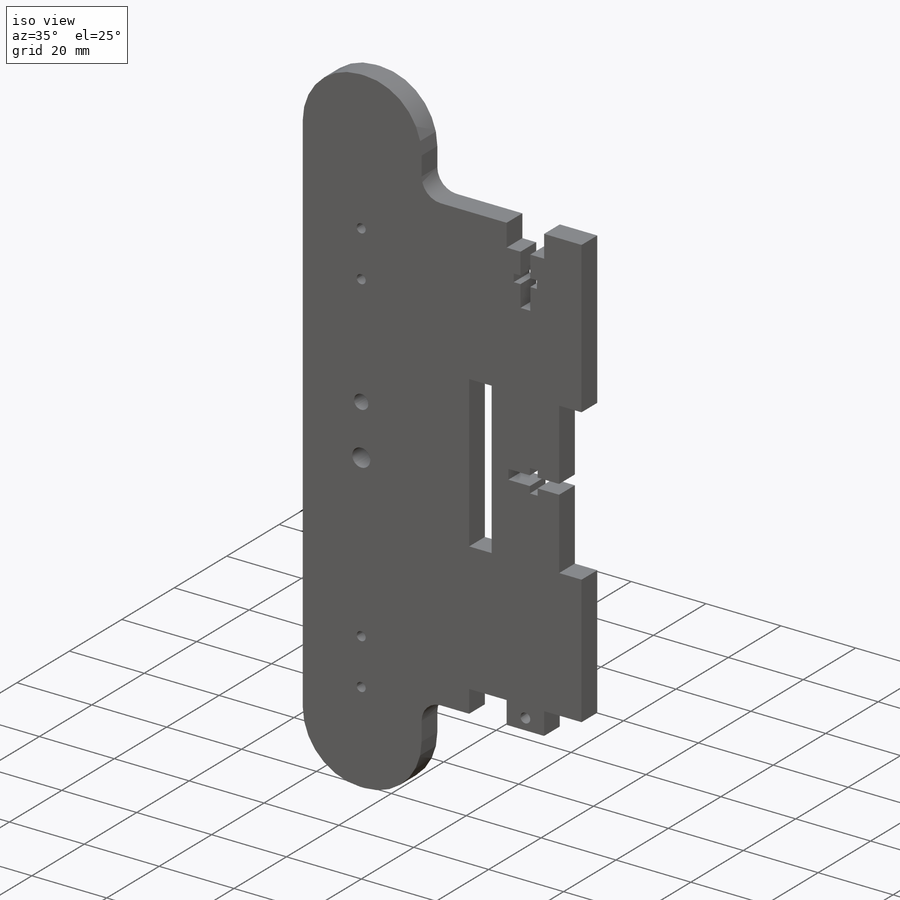
[diagram: iso view]
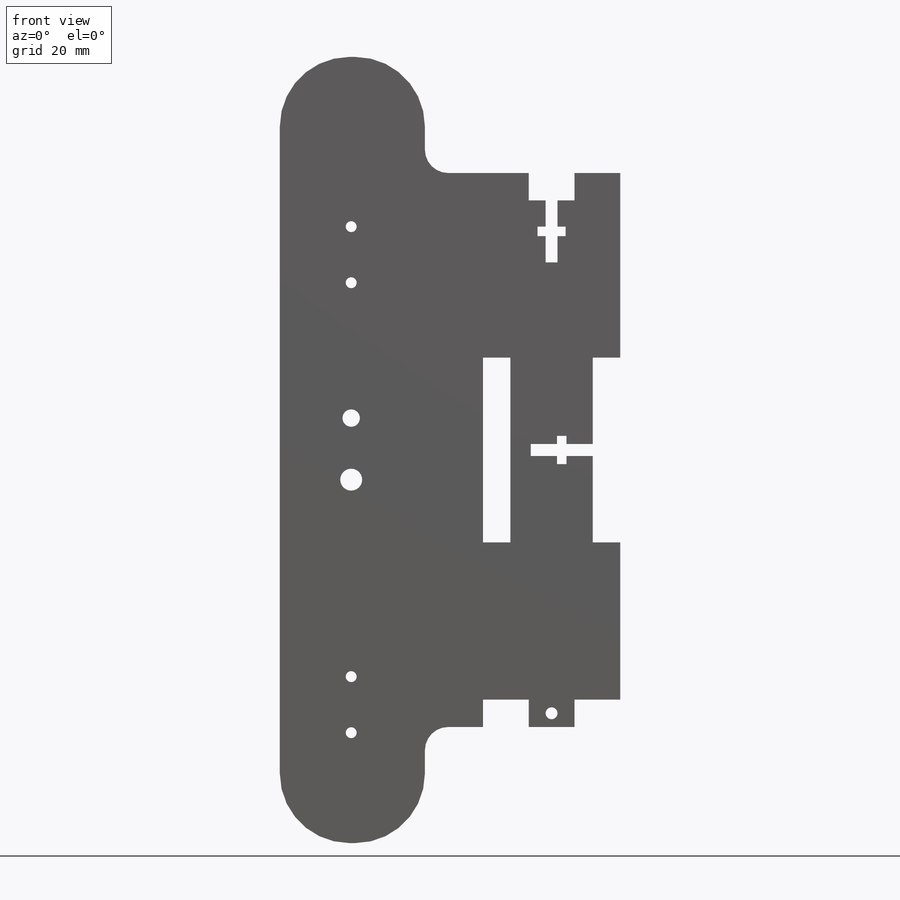
[diagram: front view]
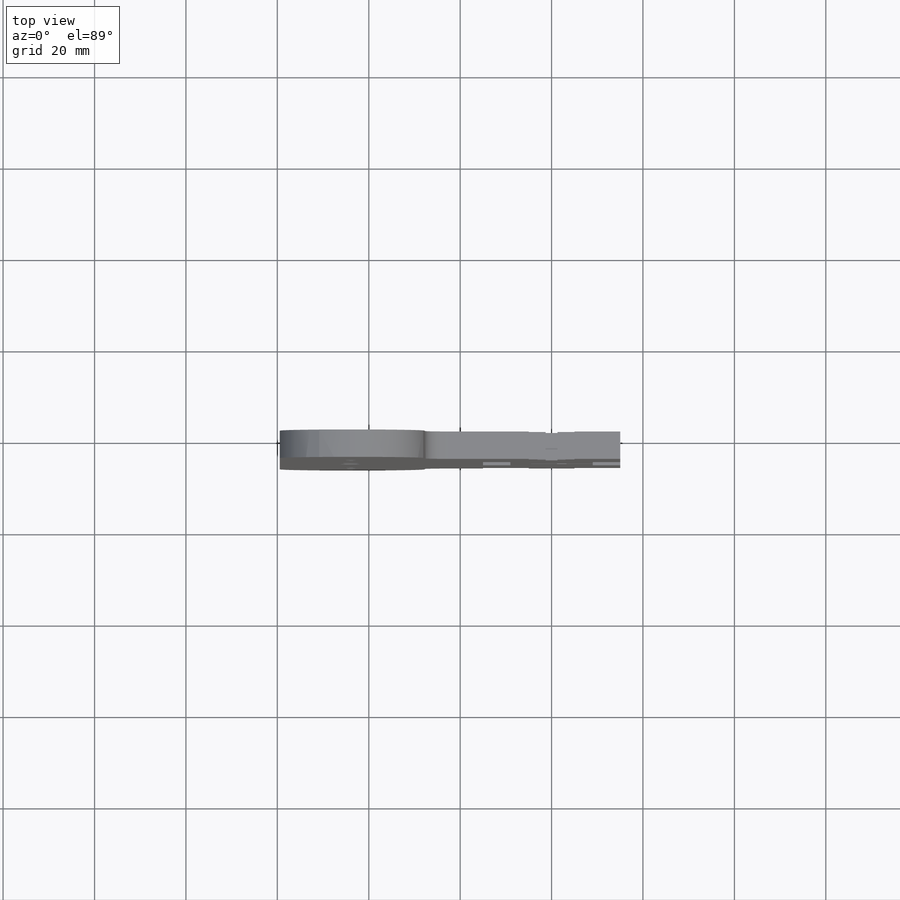
[diagram: top view]
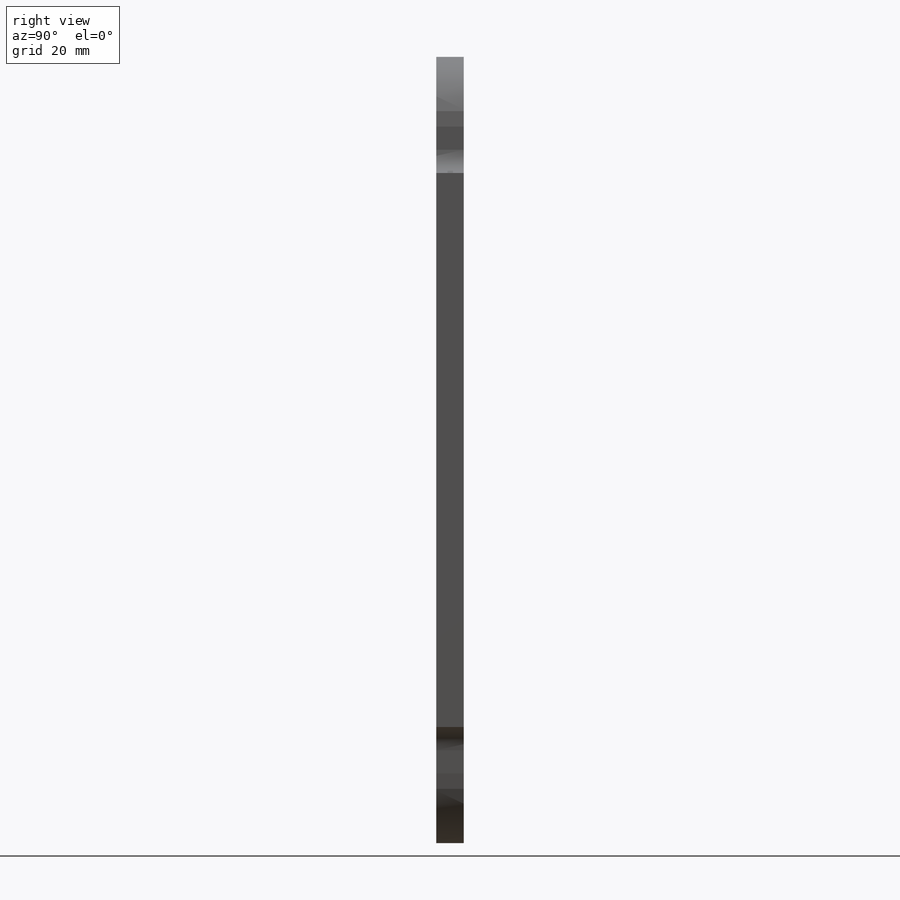
[diagram: right view]
SOLIDWORKS PART (.sldprt)
format: sldprt  version: not decoded by parser v0  size: 508,416 bytes
history: native  units: mm
features: sketch x8, extrude x4, cut_extrude x4, fillet x2, material x1 (+11 scaffold rows collapsed)
feature tree (30):
  scaffold x11  (default folders/planes/origin — collapsed)
  material  "Mahogany"
  sketch  "Sketch1"  dims[D1=29.6164mm D2=120.8024mm]
  extrude  "Boss-Extrude1"  Depth=5.7912mm
  sketch  "Sketch3"  dims[c1.D1=5.7912mm c1.D2=~33.443333mm c1.D3=~40.267467mm c2.D2=~40.267467mm]
  cut_extrude  "Cut-Extrude2"  [1 undecoded]
  sketch  "Sketch6"  dims[D1=~9.872133mm D2=~9.872133mm D3=5.7912mm]
  cut_extrude  "Cut-Extrude5"  [1 undecoded]
  sketch  "Sketch9"
  extrude  "Boss-Extrude3"  Depth=44.45mm
  sketch  "Sketch13"  dims[D1=31.75mm]
  extrude  "Boss-Extrude4"  Depth=25.4mm
  sketch  "Sketch14"  dims[D1=31.75mm]
  extrude  "Boss-Extrude5"  Depth=25.4mm
  sketch  "Sketch16"  dims[D1=4.8006mm D3=3.81mm D2=17.78mm]
  cut_extrude  "Cut-Extrude8"  Depth=13.462mm
  sketch  "Sketch18"  dims[D1=2.3876mm D2=2.3876mm D3=2.3876mm D4=2.3876mm D9=3.8862mm D10=3.8862mm D12=3.8862mm D13=3.8862mm D5=9.652mm D6=9.652mm D7=82.296mm D8=41.148mm D11=8.382mm D14=82.296mm D15=41.148mm D16=8.382mm D17=110.7186mm]
  cut_extrude  "Cut-Extrude9"  [1 undecoded]
  fillet  "Fillet2"  Radius=15.24mm
  fillet  "Fillet3"  Radius=5.08mm
decode coverage: 14 of 18 modeling features carry decoded parameters
note: ~ marks probable driven/reference dimensions
note: 3 parameter values undecoded
summary: no parameter record found for 3 features
note: suppression state not decoded; provenance and decode notes live in map.json
